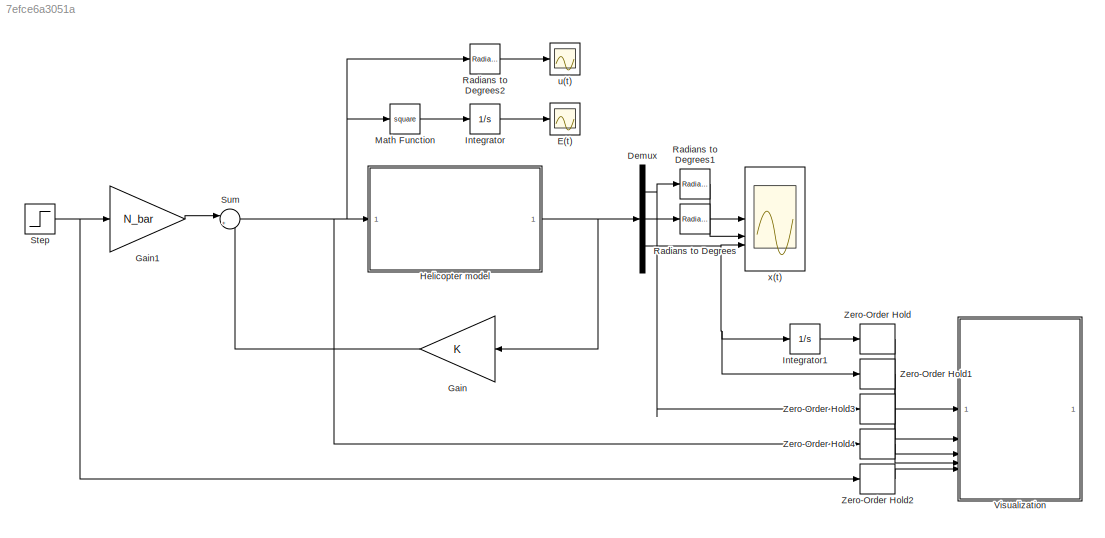
MODEL slx_7efce6a3051a
KIND model
CONFIG AbsTol = auto
CONFIG EnableMultiTasking = off
CONFIG FixedStep = 0.01
CONFIG MaxStep = auto
CONFIG MinStep = auto
CONFIG RelTol = 1e-3
CONFIG SampleTimeConstraint = Unconstrained
CONFIG SolverName = ode3
CONFIG StartTime = 0.0
CONFIG StopTime = 20
BLOCK [Demux] Demux
  Outputs = 3
BLOCK [Scope] E(t)
  Floating = off
  NumInputPorts = 1
  ScopeSpecificationString = Simulink.scopes.TimeScopeBlockCfg('CurrentConfiguration', extmgr.ConfigurationSet(extmgr.Configuration('Core','General UI',true),extmgr.Configuration('Core','Source UI',true),extmgr.Configuration('Sources','WiredSimulink',true,'DataLoggingVariableName','ScopeData2'),extmgr.Configuration('Visuals','Time Domain',true,'SerializedDisplays',{struct('MinYLimReal','-0.00415','MaxYLimReal','0.03731','YLab...<+1424ch>
BLOCK [Gain] Gain
  Gain = K
  Multiplication = Matrix(K*u) (u vector)
BLOCK [Gain] Gain1
  Gain = N_bar
  Multiplication = Matrix(K*u) (u vector)
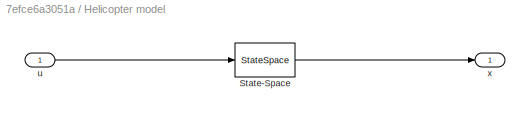
BLOCK [SubSystem] Helicopter model
BLOCK [StateSpace] Helicopter model/State-Space
  A = A
  B = B
  C = eye(3)
  D = zeros(3,1)
  InitialCondition = [0;0;0]
BLOCK [Inport] Helicopter model/u
BLOCK [Outport] Helicopter model/x
BLOCK [Integrator] Integrator
BLOCK [Integrator] Integrator1
BLOCK [Math] Math Function
  Operator = square
BLOCK [Reference] Radians to Degrees  REF=simulink_extras/Transformations/Radians
to Degrees
  SourceBlock = simulink_extras/Transformations/Radians\nto Degrees
  SourceType = RadiansToDegrees
BLOCK [Reference] Radians to Degrees1  REF=simulink_extras/Transformations/Radians
to Degrees
  SourceBlock = simulink_extras/Transformations/Radians\nto Degrees
  SourceType = RadiansToDegrees
BLOCK [Reference] Radians to Degrees2  REF=simulink_extras/Transformations/Radians
to Degrees
  SourceBlock = simulink_extras/Transformations/Radians\nto Degrees
  SourceType = RadiansToDegrees
BLOCK [Step] Step
  After = 10
  SampleTime = 0
  Time = 0
BLOCK [Sum] Sum
  Inputs = |+-
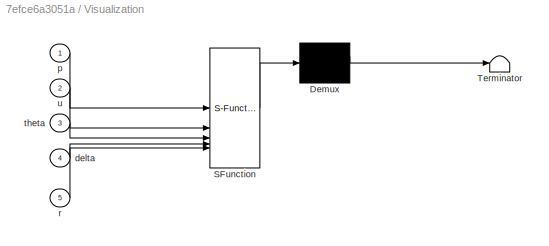
BLOCK [SubSystem] Visualization
  ErrorFcn = Stateflow.Translate.translate
  PermitHierarchicalResolution = ExplicitOnly
  SFBlockType = MATLAB Function
  TreatAsAtomicUnit = on
BLOCK [Demux] Visualization/ Demux 
  Outputs = 1
BLOCK [S-Function] Visualization/ SFunction 
  EnableBusSupport = on
  FunctionName = sf_sfun
  PortCounts = [5 1]
  SFcnIsStateOwnerBlock = off
  SFunctionDeploymentMode = off
  Tag = Stateflow S-Function 1
BLOCK [Terminator] Visualization/ Terminator 
BLOCK [Inport] Visualization/delta
  Port = 4
BLOCK [Inport] Visualization/p
BLOCK [Inport] Visualization/r
  Port = 5
BLOCK [Inport] Visualization/theta
  Port = 3
BLOCK [Inport] Visualization/u
  Port = 2
BLOCK [ZeroOrderHold] Zero-Order Hold
  SampleTime = 0.1
BLOCK [ZeroOrderHold] Zero-Order Hold1
  SampleTime = 0.1
BLOCK [ZeroOrderHold] Zero-Order Hold2
  SampleTime = 0.1
BLOCK [ZeroOrderHold] Zero-Order Hold3
  SampleTime = 0.1
BLOCK [ZeroOrderHold] Zero-Order Hold4
  SampleTime = 0.1
BLOCK [Scope] u(t)
  Floating = off
  NumInputPorts = 1
  ScopeSpecificationString = Simulink.scopes.TimeScopeBlockCfg('CurrentConfiguration', extmgr.ConfigurationSet(extmgr.Configuration('Core','General UI',true),extmgr.Configuration('Core','Source UI',true),extmgr.Configuration('Sources','WiredSimulink',true,'DataLoggingVariableName','ScopeData1'),extmgr.Configuration('Visuals','Time Domain',true,'SerializedDisplays',{struct('MinYLimReal','-7.6558','MaxYLimReal','21.00768','YLab...<+1435ch>
BLOCK [Scope] x(t)
  Floating = off
  NumInputPorts = 3
  ScopeSpecificationString = Simulink.scopes.TimeScopeBlockCfg('CurrentConfiguration', extmgr.ConfigurationSet(extmgr.Configuration('Core','General UI',true),extmgr.Configuration('Core','Source UI',true),extmgr.Configuration('Sources','WiredSimulink',true),extmgr.Configuration('Visuals','Time Domain',true,'SerializedDisplays',{struct('MinYLimReal','-24.81334','MaxYLimReal','35.41483','YLabelReal','','MinYLimMag','0.00000','Ma...<+2689ch>
NET Demux:1 -> Radians to Degrees1:1, Zero-Order Hold3:1
LINE Demux:2 -> Radians to Degrees:1
NET Demux:3 -> Integrator1:1, Zero-Order Hold1:1, x(t):3
LINE Gain1:1 -> Sum:1
LINE Gain:1 -> Sum:2
LINE Helicopter model/State-Space:1 -> Helicopter model/x:1
LINE Helicopter model/u:1 -> Helicopter model/State-Space:1
NET Helicopter model:1 -> Demux:1, Gain:1
LINE Integrator1:1 -> Zero-Order Hold:1
LINE Integrator:1 -> E(t):1
LINE Math Function:1 -> Integrator:1
LINE Radians to Degrees1:1 -> x(t):1
LINE Radians to Degrees2:1 -> u(t):1
LINE Radians to Degrees:1 -> x(t):2
NET Step:1 -> Gain1:1, Zero-Order Hold2:1
NET Sum:1 -> Helicopter model:1, Math Function:1, Radians to Degrees2:1, Zero-Order Hold4:1
LINE Zero-Order Hold1:1 -> Visualization:2
LINE Zero-Order Hold2:1 -> Visualization:5
LINE Zero-Order Hold3:1 -> Visualization:3
LINE Zero-Order Hold4:1 -> Visualization:4
LINE Zero-Order Hold:1 -> Visualization:1
note: NET lines group one-source signal fan-out (src -> all destinations, sorted); 1:1 wires keep LINE
CHART Visualization states=1 transitions=1
  STATE_LABEL 'eML_blk_kernel()'
  STATE_LABEL 'SCRIPT:\nfunction fcn(p,u,theta,delta,r)\n\n\n% body\n    Xbody = [ 1 ; -3 ; -3 ; -6 ; -6.5 ; -7.5 ; -7 ; -7 ; -6.7 ; -6.3 ; -6 ; -3 ; -2 ; 2 ;3 ;4 ; 4 ; 1.2 ];\n    Ybody = [ 1 ; 1 ; 0.5 ; 0.8 ; 2 ; 2; 0.8 ; 0 ; -0.4 ; -0.4 ; 0 ; -0.5 ; -1 ; -1 ; -0.8 ; -0.4 ; 0 ; 0]; \n\n% canopy\n    Xcanopy = [ 1.2 ; 3.9 ; 2.9 ; 1 ];\n    Ycanopy = [ 0 ; 0 ; 0.8 ; 0.9 ];\n    \n% rotor\n    Xrotor = [ 0.6 ; 0.6; 0.2 ; 0.2 ...<+2103ch>'
CHART  states=0 transitions=0
